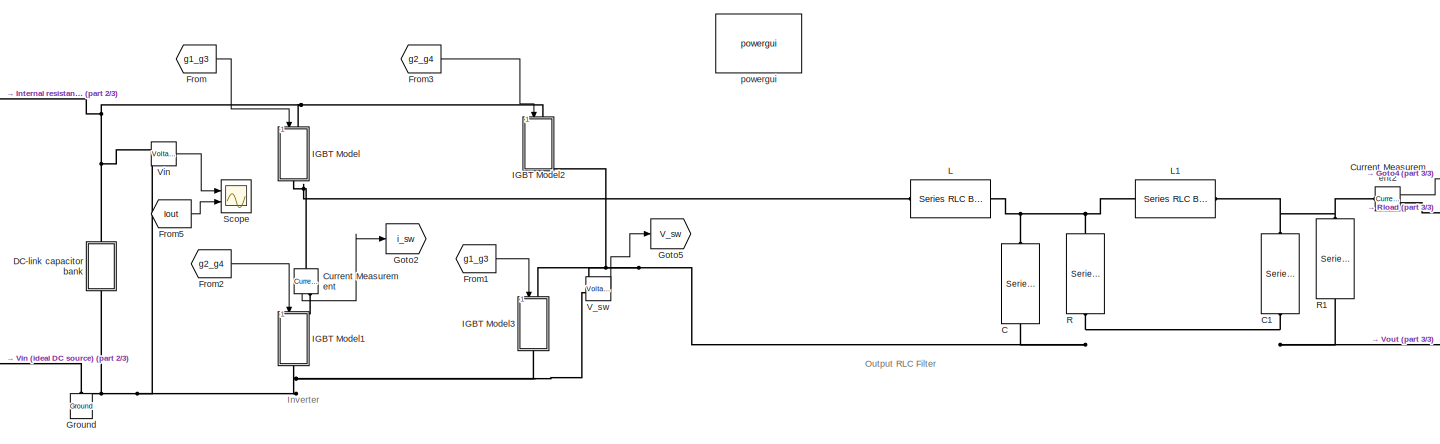
[diagram: root canvas - part 1/3, central region]
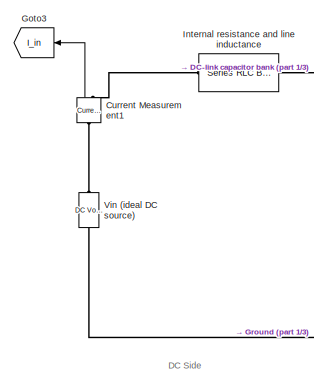
[diagram: root canvas - part 2/3, middle left region]
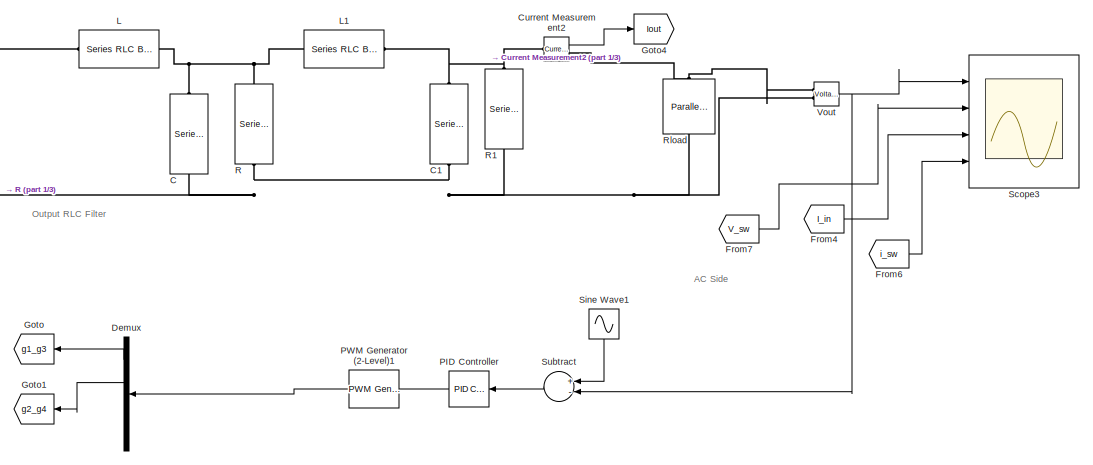
[diagram: root canvas - part 3/3, middle right region]
MODEL slx_85b6213e4886
KIND model
CONFIG AbsTol = auto
CONFIG FixedStep = auto
CONFIG MaxStep = auto
CONFIG MinStep = auto
CONFIG RelTol = 1e-3
CONFIG SampleTimeConstraint = Unconstrained
CONFIG Solver = VariableStepAuto
CONFIG SolverMode = Auto
CONFIG SolverName = VariableStepAuto
CONFIG StartTime = 0.0
CONFIG StopTime = 1
BLOCK [Reference]       Internal resistance and line inductance  REF=powerlib/Elements/Series RLC Branch
  Ports = [0, 0, 0, 0, 0, 1, 1]
  SourceBlock = powerlib/Elements/Series RLC Branch
  SourceType = Series RLC Branch
BLOCK [Reference] C  REF=powerlib/Elements/Series RLC Branch
  Ports = [0, 0, 0, 0, 0, 1, 1]
  SourceBlock = powerlib/Elements/Series RLC Branch
  SourceType = Series RLC Branch
BLOCK [Reference] C1  REF=powerlib/Elements/Series RLC Branch
  Ports = [0, 0, 0, 0, 0, 1, 1]
  SourceBlock = powerlib/Elements/Series RLC Branch
  SourceType = Series RLC Branch
BLOCK [Reference] Current Measurement  REF=powerlib/Measurements/Current Measurement
  Ports = [0, 1, 0, 0, 0, 1, 1]
  SourceBlock = powerlib/Measurements/Current Measurement
  SourceType = Current Measurement
  UserDataPersistent = on
BLOCK [Reference] Current Measurement1  REF=powerlib/Measurements/Current Measurement
  Ports = [0, 1, 0, 0, 0, 1, 1]
  SourceBlock = powerlib/Measurements/Current Measurement
  SourceType = Current Measurement
  UserDataPersistent = on
BLOCK [Reference] Current Measurement2  REF=powerlib/Measurements/Current Measurement
  Ports = [0, 1, 0, 0, 0, 1, 1]
  SourceBlock = powerlib/Measurements/Current Measurement
  SourceType = Current Measurement
  UserDataPersistent = on
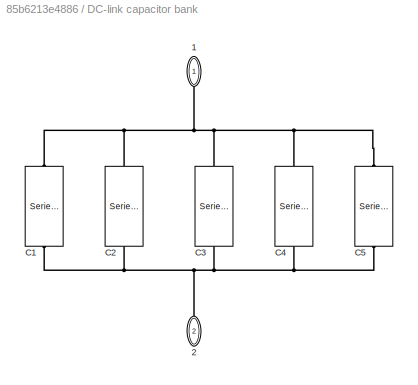
BLOCK [SubSystem] DC-link capacitor bank 
  Ports = [0, 0, 0, 0, 0, 1, 1]
  RequestExecContextInheritance = off
  Variant = off
BLOCK [PMIOPort] DC-link capacitor bank /1
  Port = 1
  Side = Left
BLOCK [PMIOPort] DC-link capacitor bank /2
  Port = 2
  Side = Right
BLOCK [Reference] DC-link capacitor bank /C1  REF=powerlib/Elements/Series RLC Branch
  Ports = [0, 0, 0, 0, 0, 1, 1]
  SourceBlock = powerlib/Elements/Series RLC Branch
  SourceType = Series RLC Branch
BLOCK [Reference] DC-link capacitor bank /C2   REF=powerlib/Elements/Series RLC Branch
  Ports = [0, 0, 0, 0, 0, 1, 1]
  SourceBlock = powerlib/Elements/Series RLC Branch
  SourceType = Series RLC Branch
BLOCK [Reference] DC-link capacitor bank /C3  REF=powerlib/Elements/Series RLC Branch
  Ports = [0, 0, 0, 0, 0, 1, 1]
  SourceBlock = powerlib/Elements/Series RLC Branch
  SourceType = Series RLC Branch
BLOCK [Reference] DC-link capacitor bank /C4  REF=powerlib/Elements/Series RLC Branch
  Ports = [0, 0, 0, 0, 0, 1, 1]
  SourceBlock = powerlib/Elements/Series RLC Branch
  SourceType = Series RLC Branch
BLOCK [Reference] DC-link capacitor bank /C5  REF=powerlib/Elements/Series RLC Branch
  Ports = [0, 0, 0, 0, 0, 1, 1]
  SourceBlock = powerlib/Elements/Series RLC Branch
  SourceType = Series RLC Branch
BLOCK [Demux] Demux
  DisplayOption = bar
  Ports = [1, 4]
BLOCK [From] From
  GotoTag = g1_g3
BLOCK [From] From1
  GotoTag = g1_g3
BLOCK [From] From2
  GotoTag = g2_g4
BLOCK [From] From3
  GotoTag = g2_g4
BLOCK [From] From4
  GotoTag = I_in
BLOCK [From] From5
  GotoTag = Iout
BLOCK [From] From6
  GotoTag = i_sw
BLOCK [From] From7
  GotoTag = V_sw
BLOCK [Goto] Goto
  GotoTag = g1_g3
BLOCK [Goto] Goto1
  GotoTag = g2_g4
BLOCK [Goto] Goto2
  GotoTag = i_sw
BLOCK [Goto] Goto3
  GotoTag = I_in
BLOCK [Goto] Goto4
  GotoTag = Iout
BLOCK [Goto] Goto5
  GotoTag = V_sw
BLOCK [Reference] Ground  REF=powerlib/Elements/Ground
  Ports = [0, 0, 0, 0, 0, 1]
  SourceBlock = powerlib/Elements/Ground
  SourceType = Ground
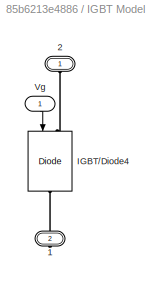
BLOCK [SubSystem] IGBT Model
  Ports = [1, 0, 0, 0, 0, 1, 1]
  RequestExecContextInheritance = off
  Variant = off
BLOCK [PMIOPort] IGBT Model/1
  Port = 2
  Side = Right
BLOCK [PMIOPort] IGBT Model/2
  Port = 1
  Side = Left
BLOCK [Reference] IGBT Model/IGBT//Diode4  REF=powerlib/Power
Electronics/IGBT//Diode
  Ports = [1, 0, 0, 0, 0, 1, 1]
  SourceBlock = powerlib/Power\nElectronics/IGBT//Diode
  SourceType = IGBT/Diode
BLOCK [Inport] IGBT Model/Vg
  IconDisplay = Port number
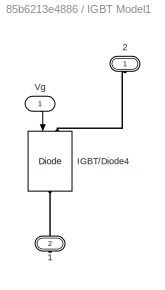
BLOCK [SubSystem] IGBT Model1
  Ports = [1, 0, 0, 0, 0, 1, 1]
  RequestExecContextInheritance = off
  Variant = off
BLOCK [PMIOPort] IGBT Model1/1
  Port = 2
  Side = Right
BLOCK [PMIOPort] IGBT Model1/2
  Port = 1
  Side = Left
BLOCK [Reference] IGBT Model1/IGBT//Diode4  REF=powerlib/Power
Electronics/IGBT//Diode
  Ports = [1, 0, 0, 0, 0, 1, 1]
  SourceBlock = powerlib/Power\nElectronics/IGBT//Diode
  SourceType = IGBT/Diode
BLOCK [Inport] IGBT Model1/Vg
  IconDisplay = Port number
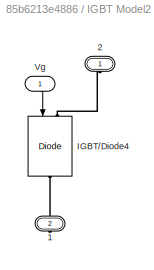
BLOCK [SubSystem] IGBT Model2
  Ports = [1, 0, 0, 0, 0, 1, 1]
  RequestExecContextInheritance = off
  Variant = off
BLOCK [PMIOPort] IGBT Model2/1
  Port = 2
  Side = Right
BLOCK [PMIOPort] IGBT Model2/2
  Port = 1
  Side = Left
BLOCK [Reference] IGBT Model2/IGBT//Diode4  REF=powerlib/Power
Electronics/IGBT//Diode
  Ports = [1, 0, 0, 0, 0, 1, 1]
  SourceBlock = powerlib/Power\nElectronics/IGBT//Diode
  SourceType = IGBT/Diode
BLOCK [Inport] IGBT Model2/Vg
  IconDisplay = Port number
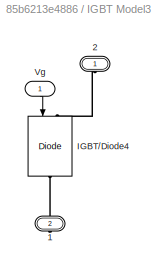
BLOCK [SubSystem] IGBT Model3
  Ports = [1, 0, 0, 0, 0, 1, 1]
  RequestExecContextInheritance = off
  Variant = off
BLOCK [PMIOPort] IGBT Model3/1
  Port = 2
  Side = Right
BLOCK [PMIOPort] IGBT Model3/2
  Port = 1
  Side = Left
BLOCK [Reference] IGBT Model3/IGBT//Diode4  REF=powerlib/Power
Electronics/IGBT//Diode
  Ports = [1, 0, 0, 0, 0, 1, 1]
  SourceBlock = powerlib/Power\nElectronics/IGBT//Diode
  SourceType = IGBT/Diode
BLOCK [Inport] IGBT Model3/Vg
  IconDisplay = Port number
BLOCK [Reference] L  REF=powerlib/Elements/Series RLC Branch
  Ports = [0, 0, 0, 0, 0, 1, 1]
  SourceBlock = powerlib/Elements/Series RLC Branch
  SourceType = Series RLC Branch
BLOCK [Reference] L1  REF=powerlib/Elements/Series RLC Branch
  Ports = [0, 0, 0, 0, 0, 1, 1]
  SourceBlock = powerlib/Elements/Series RLC Branch
  SourceType = Series RLC Branch
BLOCK [Reference] PID Controller  REF=simulink/Continuous/PID Controller
  Ports = [1, 1]
  SourceBlock = simulink/Continuous/PID Controller
  SourceType = PID 1dof
BLOCK [Reference] PWM Generator (2-Level)1  REF=powerlib_meascontrol/Pulse & Signal
Generators/PWM Generator
(2-Level)
  Ports = [1, 1]
  SourceBlock = powerlib_meascontrol/Pulse & Signal\nGenerators/PWM Generator\n(2-Level)
  SourceType = PWM Generator (2-Level)
BLOCK [Reference] R  REF=powerlib/Elements/Series RLC Branch
  Ports = [0, 0, 0, 0, 0, 1, 1]
  SourceBlock = powerlib/Elements/Series RLC Branch
  SourceType = Series RLC Branch
BLOCK [Reference] R1  REF=powerlib/Elements/Series RLC Branch
  Ports = [0, 0, 0, 0, 0, 1, 1]
  SourceBlock = powerlib/Elements/Series RLC Branch
  SourceType = Series RLC Branch
BLOCK [Reference] Rload  REF=powerlib/Elements/Parallel RLC Branch
  AttributesFormatString = \n
  Ports = [0, 0, 0, 0, 0, 1, 1]
  SourceBlock = powerlib/Elements/Parallel RLC Branch
  SourceType = Parallel RLC Branch
BLOCK [Scope] Scope
  NumInputPorts = 2
  Ports = [2]
  ScopeSpecificationString = Simulink.scopes.TimeScopeBlockCfg('CurrentConfiguration', extmgr.ConfigurationSet(extmgr.Configuration('Core','General UI',true,'DisplayFullSourceName',true),extmgr.Configuration('Core','Source UI',true),extmgr.Configuration('Sources','WiredSimulink',true,'DataLoggingVariableName','ScopeData1'),extmgr.Configuration('Visuals','Time Domain',true,'SerializedDisplays',{struct('MinYLimReal','21.75731',...<+2004ch>
BLOCK [Scope] Scope3
  NumInputPorts = 4
  Ports = [4]
  ScopeSpecificationString = Simulink.scopes.TimeScopeBlockCfg('CurrentConfiguration', extmgr.ConfigurationSet(extmgr.Configuration('Core','General UI',true,'DisplayFullSourceName',true),extmgr.Configuration('Core','Source UI',true),extmgr.Configuration('Sources','WiredSimulink',true,'DataLoggingVariableName','ScopeData3'),extmgr.Configuration('Visuals','Time Domain',true,'SerializedDisplays',{struct('MinYLimReal','-10.71386'...<+3871ch>
BLOCK [Sin] Sine Wave1
  Amplitude = 6.25
  Frequency = 2*pi*50
  Ports = [0, 1]
  SampleTime = 0
BLOCK [Sum] Subtract
  InputSameDT = off
  Inputs = +-
  OutDataTypeStr = Inherit: Inherit via internal rule
  Ports = [2, 1]
  SaturateOnIntegerOverflow = off
BLOCK [Reference] V_sw  REF=powerlib/Measurements/Voltage Measurement
  Ports = [0, 1, 0, 0, 0, 2]
  SourceBlock = powerlib/Measurements/Voltage Measurement
  SourceType = Voltage Measurement
  UserDataPersistent = on
BLOCK [Reference] Vin  REF=powerlib/Measurements/Voltage Measurement
  Ports = [0, 1, 0, 0, 0, 2]
  SourceBlock = powerlib/Measurements/Voltage Measurement
  SourceType = Voltage Measurement
  UserDataPersistent = on
BLOCK [Reference] Vin (ideal DC source)  REF=powerlib/Electrical
Sources/DC Voltage Source
  Ports = [0, 0, 0, 0, 0, 1, 1]
  SourceBlock = powerlib/Electrical\nSources/DC Voltage Source
  SourceType = DC Voltage Source
BLOCK [Reference] Vout  REF=powerlib/Measurements/Voltage Measurement
  Ports = [0, 1, 0, 0, 0, 2]
  SourceBlock = powerlib/Measurements/Voltage Measurement
  SourceType = Voltage Measurement
  UserDataPersistent = on
BLOCK [Reference] powergui  REF=powerlib/powergui
  Ports = []
  Priority = 1
  SourceBlock = powerlib/powergui
  SourceType = PSB option menu block
  UserDataPersistent = on
ANNOTATION (root): DC Side
ANNOTATION (root): AC Side
ANNOTATION (root): Output RLC Filter
ANNOTATION (root): Inverter
LINE Current Measurement1:1 -> Goto3:1
LINE Current Measurement2:1 -> Goto4:1
LINE Current Measurement:1 -> Goto2:1
LINE Demux:1 -> Goto:1
LINE Demux:2 -> Goto1:1
LINE From1:1 -> IGBT Model3:1
LINE From2:1 -> IGBT Model1:1
LINE From3:1 -> IGBT Model2:1
LINE From4:1 -> Scope3:3
LINE From5:1 -> Scope:2
LINE From6:1 -> Scope3:4
LINE From7:1 -> Scope3:2
LINE From:1 -> IGBT Model:1
LINE IGBT Model/Vg:1 -> IGBT Model/IGBT//Diode4:1
LINE IGBT Model1/Vg:1 -> IGBT Model1/IGBT//Diode4:1
LINE IGBT Model2/Vg:1 -> IGBT Model2/IGBT//Diode4:1
LINE IGBT Model3/Vg:1 -> IGBT Model3/IGBT//Diode4:1
LINE PID Controller:1 -> PWM Generator (2-Level)1:1
LINE PWM Generator (2-Level)1:1 -> Demux:1
LINE Sine Wave1:1 -> Subtract:1
LINE Subtract:1 -> PID Controller:1
LINE V_sw:1 -> Goto5:1
LINE Vin:1 -> Scope:1
NET Vout:1 -> Scope3:1, Subtract:2
PNET net1:       Internal resistance and line inductance:LConn1 -- DC-link capacitor bank :LConn1 -- IGBT Model2:LConn1 -- IGBT Model:LConn1 -- Vin:LConn1
PLINE       Internal resistance and line inductance:RConn1 -- Current Measurement1:RConn1
PNET net2: C1:LConn1 -- C:LConn1 -- IGBT Model2:RConn1 -- IGBT Model3:LConn1 -- R1:LConn1 -- R:LConn1 -- Rload:RConn1 -- V_sw:LConn1 -- Vout:LConn2
PNET net3: C1:RConn1 -- Current Measurement2:LConn1 -- L1:LConn1 -- R1:RConn1
PNET net4: C:RConn1 -- L1:RConn1 -- L:LConn1 -- R:RConn1
PLINE Current Measurement1:LConn1 -- Vin (ideal DC source):RConn1
PNET net5: Current Measurement2:RConn1 -- Rload:LConn1 -- Vout:LConn1
PNET net6: Current Measurement:LConn1 -- IGBT Model:RConn1 -- L:RConn1
PLINE Current Measurement:RConn1 -- IGBT Model1:LConn1
PNET net7: DC-link capacitor bank /1:RConn1 -- DC-link capacitor bank /C1:LConn1 -- DC-link capacitor bank /C2 :LConn1 -- DC-link capacitor bank /C3:LConn1 -- DC-link capacitor bank /C4:LConn1 -- DC-link capacitor bank /C5:LConn1
PNET net8: DC-link capacitor bank /2:RConn1 -- DC-link capacitor bank /C1:RConn1 -- DC-link capacitor bank /C2 :RConn1 -- DC-link capacitor bank /C3:RConn1 -- DC-link capacitor bank /C4:RConn1 -- DC-link capacitor bank /C5:RConn1
PNET net9: DC-link capacitor bank :RConn1 -- Ground:LConn1 -- IGBT Model1:RConn1 -- IGBT Model3:RConn1 -- V_sw:LConn2 -- Vin (ideal DC source):LConn1 -- Vin:LConn2
PLINE IGBT Model/1:RConn1 -- IGBT Model/IGBT//Diode4:RConn1
PLINE IGBT Model/2:RConn1 -- IGBT Model/IGBT//Diode4:LConn1
PLINE IGBT Model1/1:RConn1 -- IGBT Model1/IGBT//Diode4:RConn1
PLINE IGBT Model1/2:RConn1 -- IGBT Model1/IGBT//Diode4:LConn1
PLINE IGBT Model2/1:RConn1 -- IGBT Model2/IGBT//Diode4:RConn1
PLINE IGBT Model2/2:RConn1 -- IGBT Model2/IGBT//Diode4:LConn1
PLINE IGBT Model3/1:RConn1 -- IGBT Model3/IGBT//Diode4:RConn1
PLINE IGBT Model3/2:RConn1 -- IGBT Model3/IGBT//Diode4:LConn1
note: NET lines group one-source signal fan-out (src -> all destinations, sorted); 1:1 wires keep LINE; PNET lines group multi-terminal physical nets as a canonical sorted terminal list (undirected conserving connections); 2-terminal nets keep the pairwise PLINE form
